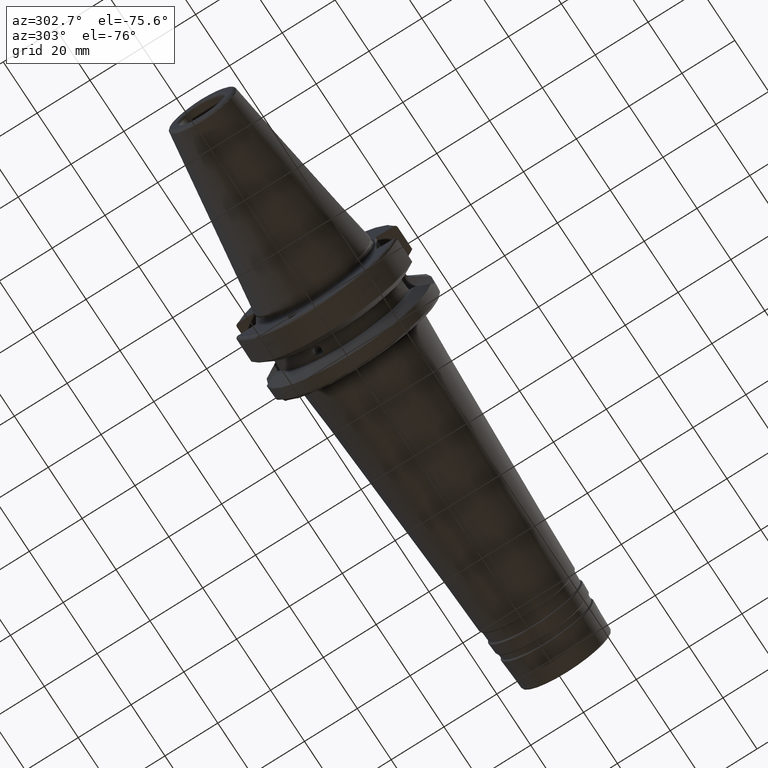
[diagram: clean part render]
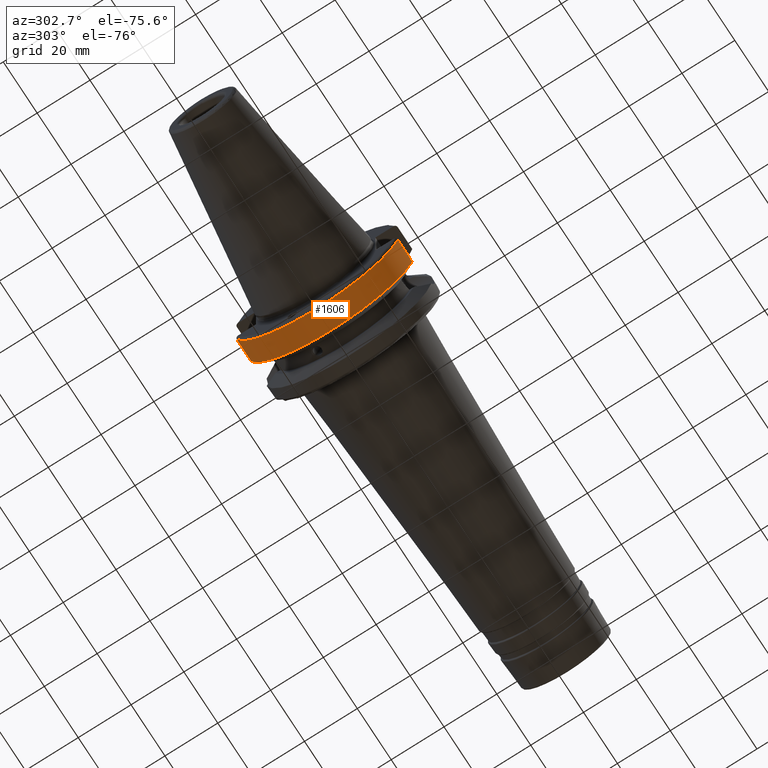
[diagram: same view with one face highlighted and labeled with its STEP entity id]
A machine part, auxiliary view. The second image highlights one B-rep face of the part: STEP entity #1606.
In plain terms, the highlighted cylindrical surface (partial cylindrical patch) has radius 31.5 mm, axis along (1, 0, 0).
Its self-contained STEP definition (entity closure, byte-faithful):
#192=FACE_OUTER_BOUND('',#287,.T.);
#287=EDGE_LOOP('',(#1365,#1366,#1367,#1368));
#361=LINE('',#2974,#428);
#368=LINE('',#3041,#435);
#428=VECTOR('',#2255,10.);
#435=VECTOR('',#2300,10.);
#552=CIRCLE('',#1827,31.5000000000001);
#553=CIRCLE('',#1829,31.5);
#715=VERTEX_POINT('',#2962);
#716=VERTEX_POINT('',#2973);
#728=VERTEX_POINT('',#3033);
#729=VERTEX_POINT('',#3039);
#935=EDGE_CURVE('',#716,#715,#361,.T.);
#955=EDGE_CURVE('',#716,#728,#552,.T.);
#957=EDGE_CURVE('',#715,#729,#553,.T.);
#958=EDGE_CURVE('',#729,#728,#368,.T.);
#1365=ORIENTED_EDGE('',*,*,#935,.T.);
#1366=ORIENTED_EDGE('',*,*,#957,.T.);
#1367=ORIENTED_EDGE('',*,*,#958,.T.);
#1368=ORIENTED_EDGE('',*,*,#955,.F.);
#1541=CYLINDRICAL_SURFACE('',#1828,31.5);
#1606=ADVANCED_FACE('',(#192),#1541,.T.);
#1827=AXIS2_PLACEMENT_3D('',#3034,#2294,#2295);
#1828=AXIS2_PLACEMENT_3D('',#3038,#2296,#2297);
#1829=AXIS2_PLACEMENT_3D('',#3040,#2298,#2299);
#2255=DIRECTION('',(-1.,0.,0.));
#2294=DIRECTION('center_axis',(1.,0.,0.));
#2295=DIRECTION('ref_axis',(0.,0.,-1.));
#2296=DIRECTION('center_axis',(1.,0.,0.));
#2297=DIRECTION('ref_axis',(0.,1.,0.));
#2298=DIRECTION('center_axis',(1.,0.,0.));
#2299=DIRECTION('ref_axis',(0.,0.,-1.));
#2300=DIRECTION('',(1.,0.,0.));
#2962=CARTESIAN_POINT('',(2.99999999999999,-30.4540227227866,-8.05));
#2973=CARTESIAN_POINT('',(11.5690363073382,-30.4540227227866,-8.05));
#2974=CARTESIAN_POINT('',(7.28451815366907,-30.4540227227866,-8.05));
#3033=CARTESIAN_POINT('',(11.5690363073382,30.4540227227866,-8.05));
#3034=CARTESIAN_POINT('Origin',(11.5690363073382,0.,0.));
#3038=CARTESIAN_POINT('Origin',(7.28451815366907,0.,0.));
#3039=CARTESIAN_POINT('',(2.99999999999999,30.4540227227866,-8.05));
#3040=CARTESIAN_POINT('Origin',(2.99999999999999,0.,0.));
#3041=CARTESIAN_POINT('',(7.28451815366907,30.4540227227866,-8.05));